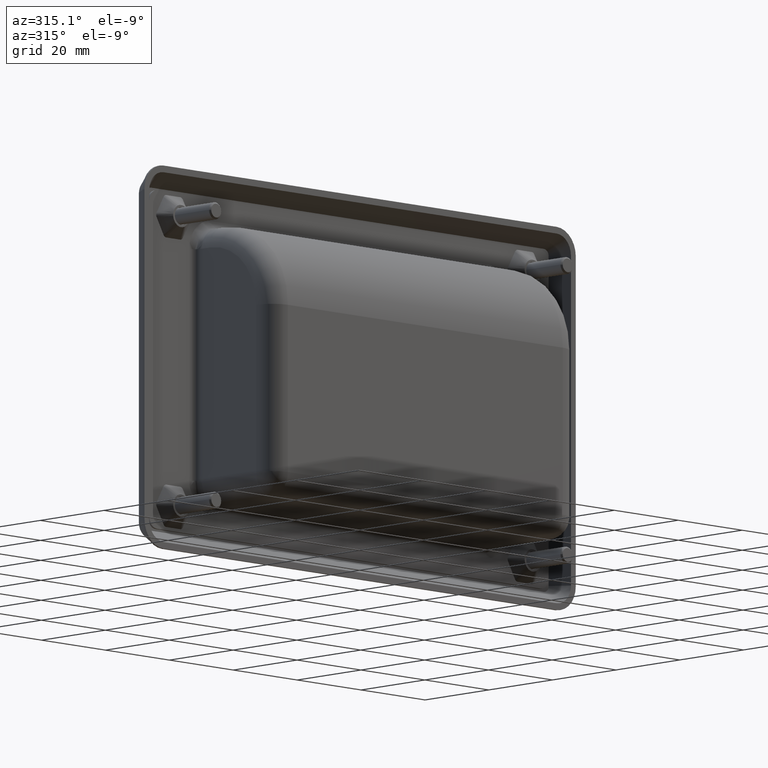
[diagram: clean part render]
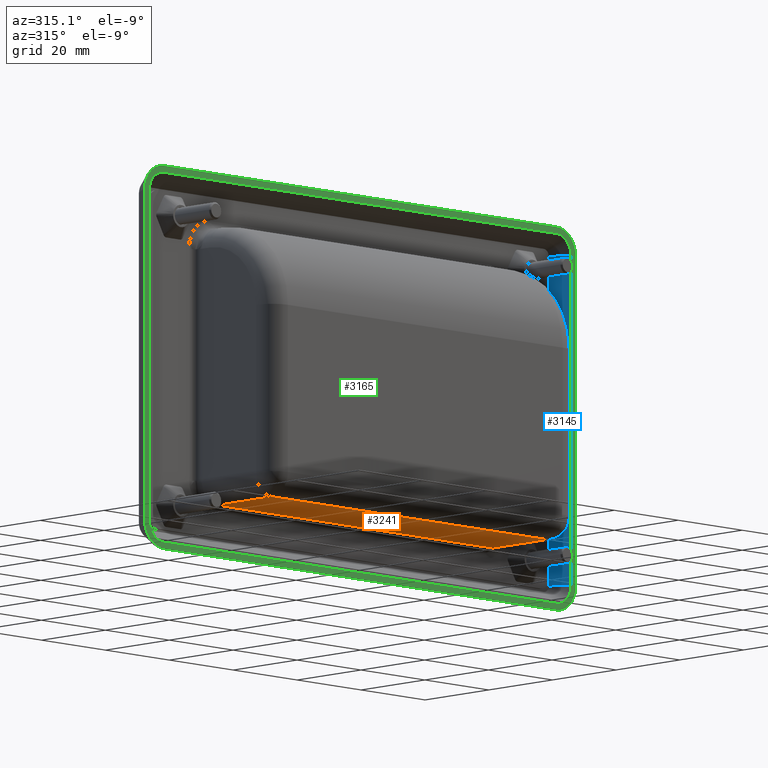
[diagram: same view with three faces highlighted in distinct colors, each labeled with its STEP entity id]
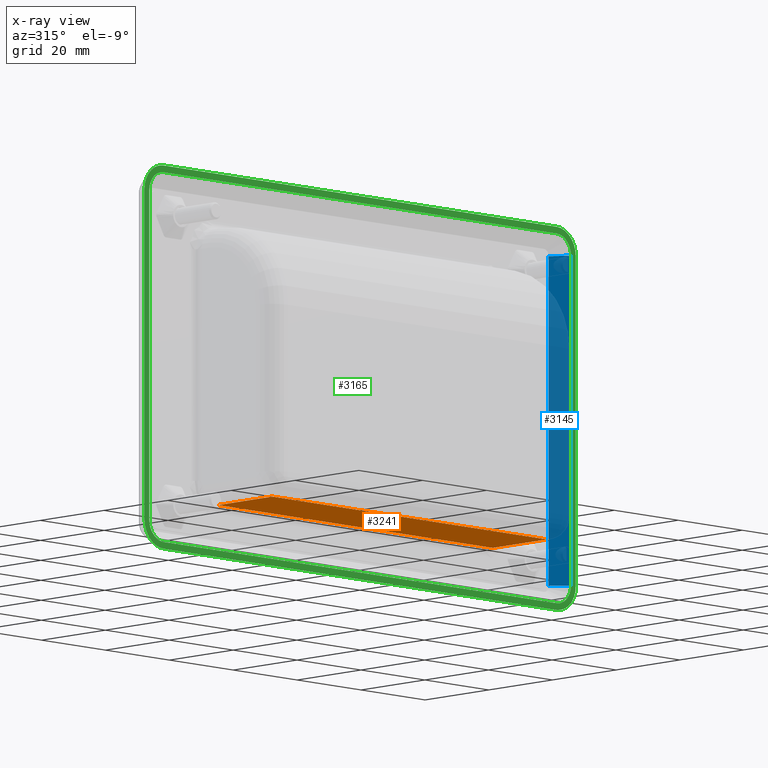
[diagram: x-ray of the same camera — body ghosted, the three highlighted faces saturated]
A machine part, auxiliary view with three faces highlighted in distinct colors.
The next image is the same camera in x-ray (body ghosted, the three faces saturated) — at least one of them is partly hidden behind the body in this view.
Their STEP definitions:

[orange] entity #3241 — the highlighted planar face has unit normal (0, 0, -1).
#260=PLANE('',#3517);
#426=FACE_OUTER_BOUND('',#645,.T.);
#645=EDGE_LOOP('',(#2819,#2820,#2821,#2822));
#901=LINE('',#7171,#1145);
#905=LINE('',#7182,#1149);
#906=LINE('',#7186,#1150);
#907=LINE('',#7187,#1151);
#1145=VECTOR('',#4252,86.);
#1149=VECTOR('',#4262,17.);
#1150=VECTOR('',#4267,17.);
#1151=VECTOR('',#4268,86.);
#1589=VERTEX_POINT('',#6868);
#1604=VERTEX_POINT('',#7143);
#1608=VERTEX_POINT('',#7181);
#1609=VERTEX_POINT('',#7185);
#2034=EDGE_CURVE('',#1589,#1604,#901,.T.);
#2039=EDGE_CURVE('',#1604,#1608,#905,.T.);
#2041=EDGE_CURVE('',#1609,#1589,#906,.T.);
#2042=EDGE_CURVE('',#1608,#1609,#907,.T.);
#2819=ORIENTED_EDGE('',*,*,#2034,.F.);
#2820=ORIENTED_EDGE('',*,*,#2041,.F.);
#2821=ORIENTED_EDGE('',*,*,#2042,.F.);
#2822=ORIENTED_EDGE('',*,*,#2039,.F.);
#3241=ADVANCED_FACE('',(#426),#260,.T.);
#3517=AXIS2_PLACEMENT_3D('',#7184,#4265,#4266);
#4252=DIRECTION('',(-1.,0.,0.));
#4262=DIRECTION('',(0.,-1.,0.));
#4265=DIRECTION('center_axis',(0.,0.,-1.));
#4266=DIRECTION('ref_axis',(1.,0.,0.));
#4267=DIRECTION('',(0.,1.,0.));
#4268=DIRECTION('',(1.,0.,0.));
#6868=CARTESIAN_POINT('',(43.,-2.,-31.));
#7143=CARTESIAN_POINT('',(-43.,-2.,-31.));
#7171=CARTESIAN_POINT('',(-24.,-2.,-31.));
#7181=CARTESIAN_POINT('',(-43.,-19.,-31.));
#7182=CARTESIAN_POINT('',(-43.,0.,-31.));
#7184=CARTESIAN_POINT('Origin',(-48.,0.,-31.));
#7185=CARTESIAN_POINT('',(43.,-19.,-31.));
#7186=CARTESIAN_POINT('',(43.,0.,-31.));
#7187=CARTESIAN_POINT('',(-24.,-19.,-31.));

[blue] entity #3145 — the highlighted planar face has unit normal (-0.8, -0.6, 0).
#241=PLANE('',#3401);
#330=FACE_OUTER_BOUND('',#539,.T.);
#539=EDGE_LOOP('',(#2369,#2370,#2371,#2372));
#749=LINE('',#4712,#993);
#774=LINE('',#4789,#1018);
#775=LINE('',#4791,#1019);
#776=LINE('',#4792,#1020);
#993=VECTOR('',#3818,74.);
#1018=VECTOR('',#3903,5.);
#1019=VECTOR('',#3904,74.);
#1020=VECTOR('',#3905,5.);
#1413=VERTEX_POINT('',#4710);
#1414=VERTEX_POINT('',#4711);
#1436=VERTEX_POINT('',#4788);
#1437=VERTEX_POINT('',#4790);
#1740=EDGE_CURVE('',#1413,#1414,#749,.T.);
#1778=EDGE_CURVE('',#1414,#1436,#774,.T.);
#1779=EDGE_CURVE('',#1437,#1436,#775,.T.);
#1780=EDGE_CURVE('',#1437,#1413,#776,.T.);
#2369=ORIENTED_EDGE('',*,*,#1740,.T.);
#2370=ORIENTED_EDGE('',*,*,#1778,.T.);
#2371=ORIENTED_EDGE('',*,*,#1779,.F.);
#2372=ORIENTED_EDGE('',*,*,#1780,.T.);
#3145=ADVANCED_FACE('',(#330),#241,.T.);
#3401=AXIS2_PLACEMENT_3D('',#4787,#3901,#3902);
#3818=DIRECTION('',(0.,0.,-1.));
#3901=DIRECTION('center_axis',(-0.800000000000001,-0.599999999999999,0.));
#3902=DIRECTION('ref_axis',(0.,0.,1.));
#3903=DIRECTION('',(0.599999999999995,-0.800000000000004,5.32907051820078E-15));
#3904=DIRECTION('',(0.,0.,-1.));
#3905=DIRECTION('',(-0.599999999999997,0.800000000000002,1.77635683940025E-15));
#4710=CARTESIAN_POINT('',(63.,4.,37.));
#4711=CARTESIAN_POINT('',(63.,4.,-37.));
#4712=CARTESIAN_POINT('',(63.,4.,37.));
#4787=CARTESIAN_POINT('Origin',(63.,4.,37.));
#4788=CARTESIAN_POINT('',(66.,0.,-37.));
#4789=CARTESIAN_POINT('',(63.,4.,-37.));
#4790=CARTESIAN_POINT('',(66.,0.,37.));
#4791=CARTESIAN_POINT('',(66.,0.,18.5));
#4792=CARTESIAN_POINT('',(66.,0.,37.));

[green] entity #3165 — the highlighted planar face has unit normal (0, 1, 0).
#180=FACE_BOUND('',#560,.T.);
#251=PLANE('',#3431);
#350=FACE_OUTER_BOUND('',#559,.T.);
#559=EDGE_LOOP('',(#2449,#2450,#2451,#2452,#2453,#2454,#2455,#2456));
#560=EDGE_LOOP('',(#2457,#2458,#2459,#2460,#2461,#2462,#2463,#2464));
#775=LINE('',#4791,#1019);
#779=LINE('',#4800,#1023);
#782=LINE('',#4808,#1026);
#785=LINE('',#4816,#1029);
#794=LINE('',#4842,#1038);
#797=LINE('',#4850,#1041);
#800=LINE('',#4858,#1044);
#802=LINE('',#4864,#1046);
#1019=VECTOR('',#3904,74.);
#1023=VECTOR('',#3914,123.);
#1026=VECTOR('',#3923,74.);
#1029=VECTOR('',#3932,123.);
#1038=VECTOR('',#3963,123.);
#1041=VECTOR('',#3972,74.);
#1044=VECTOR('',#3981,74.);
#1046=VECTOR('',#3989,123.);
#1235=CIRCLE('',#3403,4.5);
#1236=CIRCLE('',#3406,4.5);
#1237=CIRCLE('',#3409,4.5);
#1238=CIRCLE('',#3412,4.5);
#1241=CIRCLE('',#3420,6.00000000000001);
#1242=CIRCLE('',#3423,6.);
#1243=CIRCLE('',#3426,6.00000000000001);
#1244=CIRCLE('',#3429,6.00000000000002);
#1436=VERTEX_POINT('',#4788);
#1437=VERTEX_POINT('',#4790);
#1438=VERTEX_POINT('',#4794);
#1439=VERTEX_POINT('',#4798);
#1440=VERTEX_POINT('',#4802);
#1441=VERTEX_POINT('',#4806);
#1442=VERTEX_POINT('',#4810);
#1443=VERTEX_POINT('',#4814);
#1447=VERTEX_POINT('',#4834);
#1448=VERTEX_POINT('',#4836);
#1449=VERTEX_POINT('',#4840);
#1450=VERTEX_POINT('',#4844);
#1451=VERTEX_POINT('',#4848);
#1452=VERTEX_POINT('',#4852);
#1453=VERTEX_POINT('',#4854);
#1454=VERTEX_POINT('',#4860);
#1779=EDGE_CURVE('',#1437,#1436,#775,.T.);
#1782=EDGE_CURVE('',#1436,#1438,#1235,.T.);
#1784=EDGE_CURVE('',#1438,#1439,#779,.T.);
#1786=EDGE_CURVE('',#1439,#1440,#1236,.T.);
#1788=EDGE_CURVE('',#1440,#1441,#782,.T.);
#1790=EDGE_CURVE('',#1441,#1442,#1237,.T.);
#1792=EDGE_CURVE('',#1442,#1443,#785,.T.);
#1793=EDGE_CURVE('',#1443,#1437,#1238,.T.);
#1802=EDGE_CURVE('',#1447,#1448,#1241,.T.);
#1805=EDGE_CURVE('',#1449,#1447,#794,.T.);
#1807=EDGE_CURVE('',#1450,#1449,#1242,.T.);
#1809=EDGE_CURVE('',#1451,#1450,#797,.T.);
#1811=EDGE_CURVE('',#1452,#1453,#1243,.T.);
#1813=EDGE_CURVE('',#1448,#1452,#800,.T.);
#1815=EDGE_CURVE('',#1454,#1451,#1244,.T.);
#1816=EDGE_CURVE('',#1453,#1454,#802,.T.);
#2449=ORIENTED_EDGE('',*,*,#1816,.F.);
#2450=ORIENTED_EDGE('',*,*,#1811,.F.);
#2451=ORIENTED_EDGE('',*,*,#1813,.F.);
#2452=ORIENTED_EDGE('',*,*,#1802,.F.);
#2453=ORIENTED_EDGE('',*,*,#1805,.F.);
#2454=ORIENTED_EDGE('',*,*,#1807,.F.);
#2455=ORIENTED_EDGE('',*,*,#1809,.F.);
#2456=ORIENTED_EDGE('',*,*,#1815,.F.);
#2457=ORIENTED_EDGE('',*,*,#1779,.T.);
#2458=ORIENTED_EDGE('',*,*,#1782,.T.);
#2459=ORIENTED_EDGE('',*,*,#1784,.T.);
#2460=ORIENTED_EDGE('',*,*,#1786,.T.);
#2461=ORIENTED_EDGE('',*,*,#1788,.T.);
#2462=ORIENTED_EDGE('',*,*,#1790,.T.);
#2463=ORIENTED_EDGE('',*,*,#1792,.T.);
#2464=ORIENTED_EDGE('',*,*,#1793,.T.);
#3165=ADVANCED_FACE('',(#350,#180),#251,.F.);
#3403=AXIS2_PLACEMENT_3D('',#4796,#3909,#3910);
#3406=AXIS2_PLACEMENT_3D('',#4804,#3918,#3919);
#3409=AXIS2_PLACEMENT_3D('',#4812,#3927,#3928);
#3412=AXIS2_PLACEMENT_3D('',#4818,#3935,#3936);
#3420=AXIS2_PLACEMENT_3D('',#4837,#3957,#3958);
#3423=AXIS2_PLACEMENT_3D('',#4846,#3967,#3968);
#3426=AXIS2_PLACEMENT_3D('',#4855,#3976,#3977);
#3429=AXIS2_PLACEMENT_3D('',#4862,#3985,#3986);
#3431=AXIS2_PLACEMENT_3D('',#4865,#3990,#3991);
#3904=DIRECTION('',(0.,0.,-1.));
#3909=DIRECTION('center_axis',(0.,1.,0.));
#3910=DIRECTION('ref_axis',(-3.94745964311167E-15,0.,1.));
#3914=DIRECTION('',(-1.,0.,0.));
#3918=DIRECTION('center_axis',(0.,1.,0.));
#3919=DIRECTION('ref_axis',(1.,0.,9.86864910777917E-16));
#3923=DIRECTION('',(0.,0.,1.));
#3927=DIRECTION('center_axis',(0.,1.,0.));
#3928=DIRECTION('ref_axis',(3.94745964311167E-15,0.,-1.));
#3932=DIRECTION('',(1.,0.,0.));
#3935=DIRECTION('center_axis',(0.,1.,0.));
#3936=DIRECTION('ref_axis',(-1.,0.,2.96059473233375E-15));
#3957=DIRECTION('center_axis',(0.,1.,0.));
#3958=DIRECTION('ref_axis',(0.,0.,-1.));
#3963=DIRECTION('',(-1.,0.,0.));
#3967=DIRECTION('center_axis',(0.,1.,0.));
#3968=DIRECTION('ref_axis',(1.,0.,0.));
#3972=DIRECTION('',(0.,0.,-1.));
#3976=DIRECTION('center_axis',(0.,1.,0.));
#3977=DIRECTION('ref_axis',(-1.,0.,0.));
#3981=DIRECTION('',(0.,0.,1.));
#3985=DIRECTION('center_axis',(0.,1.,0.));
#3986=DIRECTION('ref_axis',(0.,0.,1.));
#3989=DIRECTION('',(1.,0.,0.));
#3990=DIRECTION('center_axis',(0.,1.,0.));
#3991=DIRECTION('ref_axis',(0.,0.,1.));
#4788=CARTESIAN_POINT('',(66.,0.,-37.));
#4790=CARTESIAN_POINT('',(66.,0.,37.));
#4791=CARTESIAN_POINT('',(66.,0.,18.5));
#4794=CARTESIAN_POINT('',(61.5,0.,-41.5));
#4796=CARTESIAN_POINT('Origin',(61.5,0.,-37.));
#4798=CARTESIAN_POINT('',(-61.5,0.,-41.5));
#4800=CARTESIAN_POINT('',(30.75,2.22044604925031E-15,-41.5));
#4802=CARTESIAN_POINT('',(-66.,0.,-37.));
#4804=CARTESIAN_POINT('Origin',(-61.5,0.,-37.));
#4806=CARTESIAN_POINT('',(-66.,0.,37.));
#4808=CARTESIAN_POINT('',(-66.,2.22044604925031E-15,-18.5));
#4810=CARTESIAN_POINT('',(-61.5,0.,41.5));
#4812=CARTESIAN_POINT('Origin',(-61.5,0.,37.));
#4814=CARTESIAN_POINT('',(61.5,0.,41.5));
#4816=CARTESIAN_POINT('',(-30.75,2.22044604925031E-15,41.5));
#4818=CARTESIAN_POINT('Origin',(61.5,0.,37.));
#4834=CARTESIAN_POINT('',(-61.5,0.,-43.));
#4836=CARTESIAN_POINT('',(-67.5,0.,-37.));
#4837=CARTESIAN_POINT('Origin',(-61.5,0.,-37.));
#4840=CARTESIAN_POINT('',(61.5,0.,-43.));
#4842=CARTESIAN_POINT('',(61.5,0.,-43.));
#4844=CARTESIAN_POINT('',(67.5,0.,-37.));
#4846=CARTESIAN_POINT('Origin',(61.5,0.,-37.));
#4848=CARTESIAN_POINT('',(67.5,0.,37.));
#4850=CARTESIAN_POINT('',(67.5,0.,37.));
#4852=CARTESIAN_POINT('',(-67.5,0.,37.));
#4854=CARTESIAN_POINT('',(-61.5,0.,43.));
#4855=CARTESIAN_POINT('Origin',(-61.5,0.,37.));
#4858=CARTESIAN_POINT('',(-67.5,0.,-37.));
#4860=CARTESIAN_POINT('',(61.5,0.,43.));
#4862=CARTESIAN_POINT('Origin',(61.5,0.,37.));
#4864=CARTESIAN_POINT('',(-61.5,0.,43.));
#4865=CARTESIAN_POINT('Origin',(8.88178419700125E-15,0.,0.));